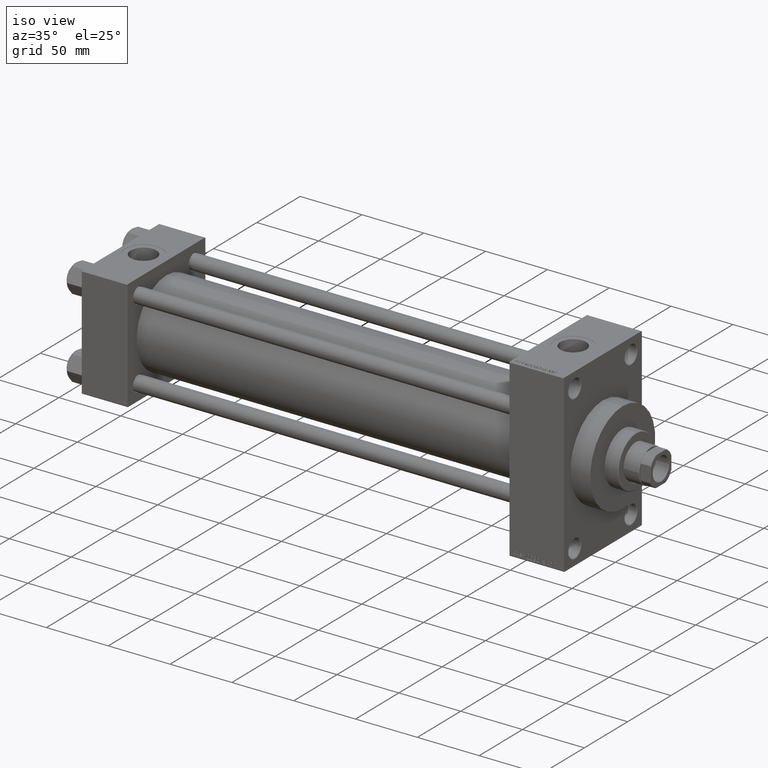
[diagram: clean part render]
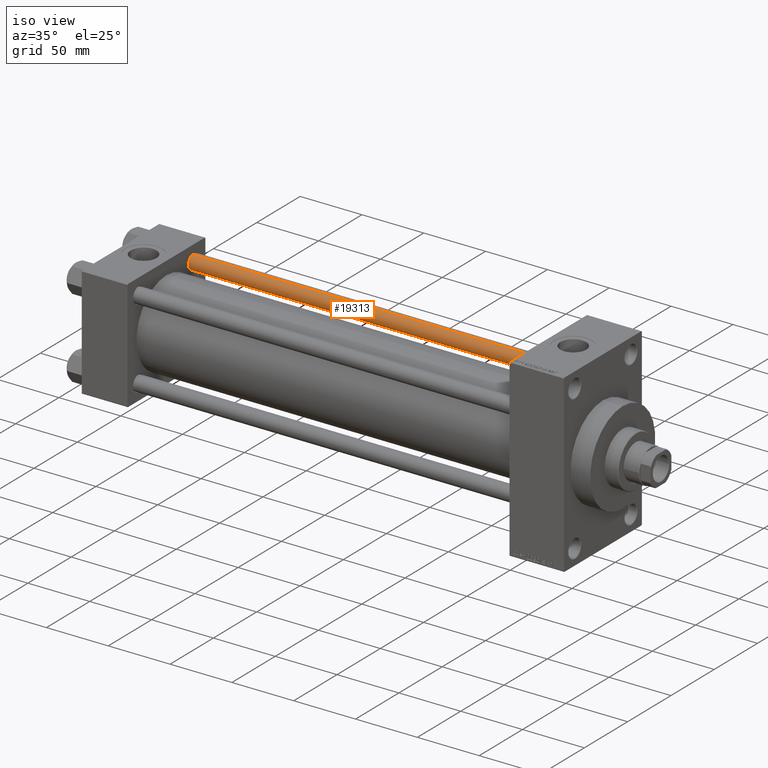
[diagram: same view with one face highlighted and labeled with its STEP entity id]
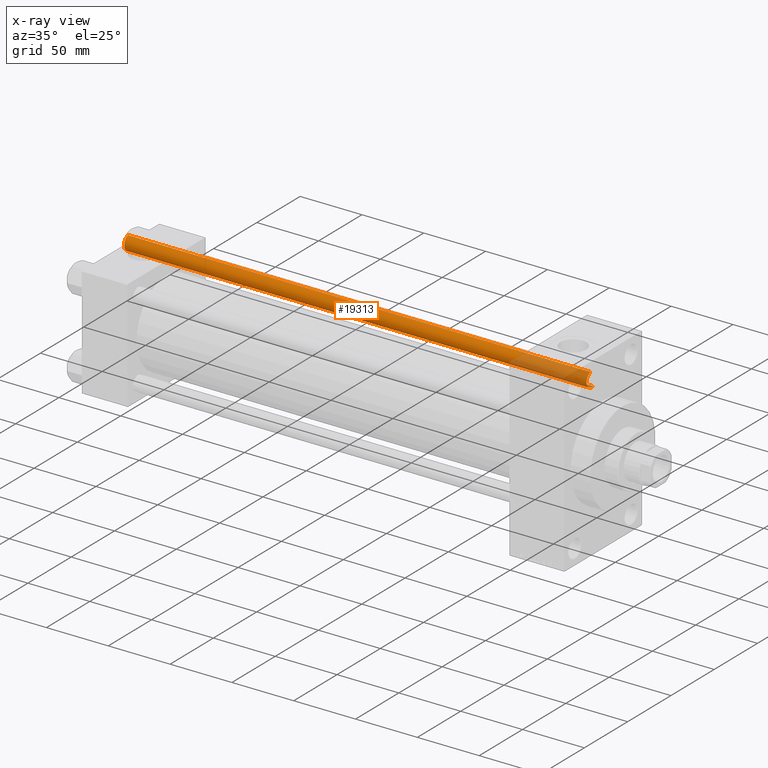
[diagram: x-ray of the same camera — body ghosted, the highlighted face saturated]
A machine part, iso view. The second image highlights one B-rep face of the part: STEP entity #19313.
The next image is the same camera in x-ray: the body ghosted, the highlighted face saturated — about 16% of this face is hidden behind the body in this view.
In plain terms, the highlighted cylindrical surface (edge-blend (fillet) strip) has radius 6 mm, axis along (-1, -0, 0).
Its self-contained STEP definition (entity closure, byte-faithful):
#1268 = EDGE_LOOP ( 'NONE', ( #37191, #28672, #2480, #33585 ) ) ;
#1434 = DIRECTION ( 'NONE',  ( -0.000000000000000000, -0.000000000000000000, -1.000000000000000000 ) ) ;
#2480 = ORIENTED_EDGE ( 'NONE', *, *, #15538, .T. ) ;
#2865 = VERTEX_POINT ( 'NONE', #5706 ) ;
#5706 = CARTESIAN_POINT ( 'NONE',  ( 6.000000000000000888, 7.347880794884120722E-16, 0.5000000000000559552 ) ) ;
#6623 = DIRECTION ( 'NONE',  ( -0.000000000000000000, -0.000000000000000000, -1.000000000000000000 ) ) ;
#8806 = CARTESIAN_POINT ( 'NONE',  ( -6.000000000000000888, 0.000000000000000000, 374.5000000000000000 ) ) ;
#10601 = AXIS2_PLACEMENT_3D ( 'NONE', #43053, #42066, #26862 ) ;
#12704 = CARTESIAN_POINT ( 'NONE',  ( 6.000000000000000888, 7.347880794884120722E-16, 374.5000000000000000 ) ) ;
#14022 = CARTESIAN_POINT ( 'NONE',  ( 0.000000000000000000, 0.000000000000000000, 0.5000000000000559552 ) ) ;
#15538 = EDGE_CURVE ( 'NONE', #21029, #23963, #20381, .T. ) ;
#16190 = VERTEX_POINT ( 'NONE', #12704 ) ;
#18737 = CIRCLE ( 'NONE', #48977, 6.000000000000000888 ) ;
#19313 = ADVANCED_FACE ( 'NONE', ( #20845 ), #36782, .T. ) ;
#20381 = LINE ( 'NONE', #35086, #20947 ) ;
#20845 = FACE_OUTER_BOUND ( 'NONE', #1268, .T. ) ;
#20947 = VECTOR ( 'NONE', #1434, 1000.000000000000000 ) ;
#21029 = VERTEX_POINT ( 'NONE', #8806 ) ;
#23963 = VERTEX_POINT ( 'NONE', #29858 ) ;
#25308 = CARTESIAN_POINT ( 'NONE',  ( 0.000000000000000000, 0.000000000000000000, 375.0000000000000000 ) ) ;
#25484 = DIRECTION ( 'NONE',  ( 1.000000000000000000, 0.000000000000000000, 0.000000000000000000 ) ) ;
#25720 = CIRCLE ( 'NONE', #10601, 6.000000000000000888 ) ;
#26862 = DIRECTION ( 'NONE',  ( 1.000000000000000000, 0.000000000000000000, 0.000000000000000000 ) ) ;
#28672 = ORIENTED_EDGE ( 'NONE', *, *, #36799, .T. ) ;
#29196 = VECTOR ( 'NONE', #33966, 1000.000000000000000 ) ;
#29222 = DIRECTION ( 'NONE',  ( -0.000000000000000000, -0.000000000000000000, 1.000000000000000000 ) ) ;
#29858 = CARTESIAN_POINT ( 'NONE',  ( -6.000000000000000888, 0.000000000000000000, 0.5000000000000559552 ) ) ;
#33585 = ORIENTED_EDGE ( 'NONE', *, *, #42158, .T. ) ;
#33966 = DIRECTION ( 'NONE',  ( -0.000000000000000000, -0.000000000000000000, -1.000000000000000000 ) ) ;
#35086 = CARTESIAN_POINT ( 'NONE',  ( -6.000000000000000888, 0.000000000000000000, 375.0000000000000000 ) ) ;
#36288 = DIRECTION ( 'NONE',  ( -1.000000000000000000, 0.000000000000000000, 0.000000000000000000 ) ) ;
#36782 = CYLINDRICAL_SURFACE ( 'NONE', #48899, 6.000000000000000888 ) ;
#36799 = EDGE_CURVE ( 'NONE', #16190, #21029, #25720, .T. ) ;
#37191 = ORIENTED_EDGE ( 'NONE', *, *, #45206, .F. ) ;
#41690 = LINE ( 'NONE', #48923, #29196 ) ;
#42066 = DIRECTION ( 'NONE',  ( 0.000000000000000000, 0.000000000000000000, -1.000000000000000000 ) ) ;
#42158 = EDGE_CURVE ( 'NONE', #23963, #2865, #18737, .T. ) ;
#43053 = CARTESIAN_POINT ( 'NONE',  ( 0.000000000000000000, 0.000000000000000000, 374.5000000000000000 ) ) ;
#45206 = EDGE_CURVE ( 'NONE', #16190, #2865, #41690, .T. ) ;
#48899 = AXIS2_PLACEMENT_3D ( 'NONE', #25308, #6623, #36288 ) ;
#48923 = CARTESIAN_POINT ( 'NONE',  ( 6.000000000000000888, 7.347880794884120722E-16, 375.0000000000000000 ) ) ;
#48977 = AXIS2_PLACEMENT_3D ( 'NONE', #14022, #29222, #25484 ) ;